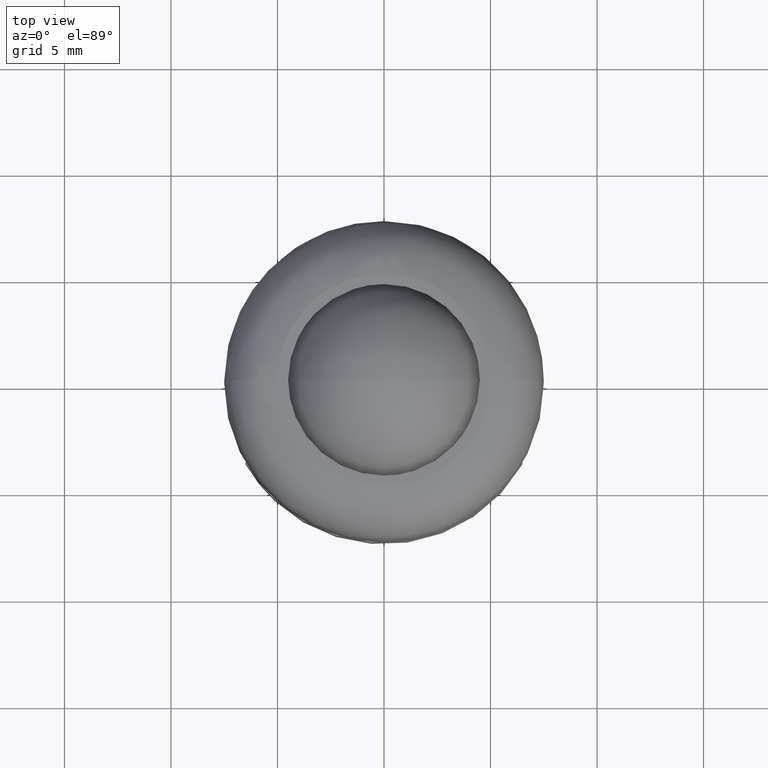
[diagram: clean part render]
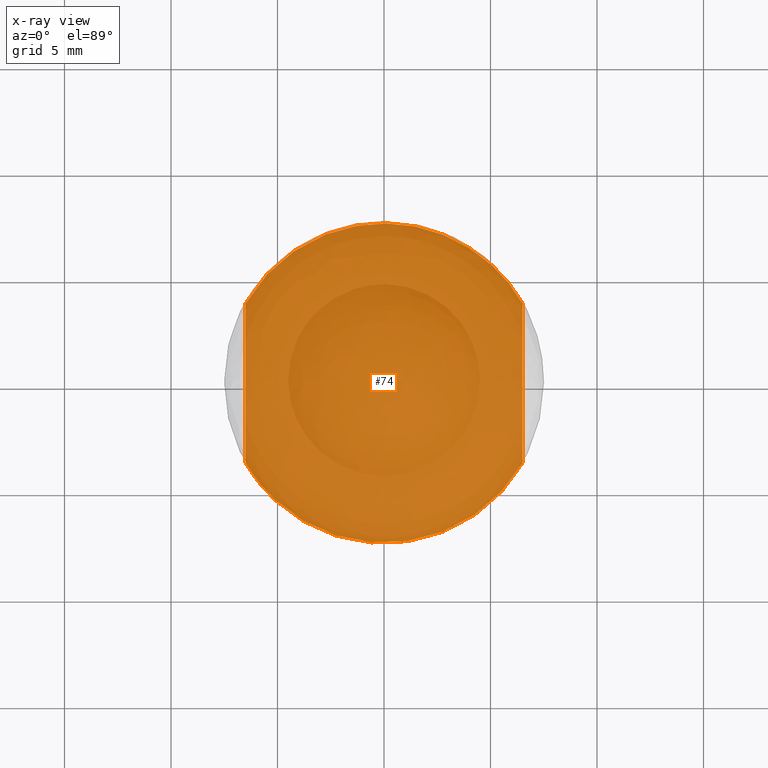
[diagram: x-ray — body ghosted, one internal face saturated and labeled with its STEP entity id]
A machine part, top view, then the same camera in x-ray: the body is ghosted and one INTERNAL B-rep face — a face not visible from any outside direction — is saturated and labeled: STEP entity #74.
In plain terms, the highlighted face is a freeform B-spline surface patch.
Its self-contained STEP definition (entity closure, byte-faithful):
#5=CARTESIAN_POINT('',(-7.149349974803478,-8.249261892420799,0.0));
#6=CARTESIAN_POINT('',(7.149350323490650,-8.249261892420799,0.0));
#7=CARTESIAN_POINT('',(-7.149349974803478,8.249258807880432,0.0));
#8=CARTESIAN_POINT('',(7.149350323490650,8.249258807880432,0.0));
#9=B_SPLINE_SURFACE_WITH_KNOTS('',1,1,((#5,#7),(#6,#8)),.UNSPECIFIED.,.F.,.F.,.U.,(2,2),(2,2),(0.0,14.298700298294129),(0.0,16.498520700301231),.UNSPECIFIED.);
#10=CARTESIAN_POINT('',(-6.500000000000000,3.741657386773940,0.0));
#11=VERTEX_POINT('',#10);
#12=CARTESIAN_POINT('',(6.500000000000000,3.741657386773935,0.0));
#13=VERTEX_POINT('',#12);
#14=CARTESIAN_POINT('',(-6.500000000000000,3.741657386773940,0.0));
#15=CARTESIAN_POINT('',(-6.275283384503942,4.132132352465598,0.0));
#16=CARTESIAN_POINT('',(-5.837891935122653,4.754589229707348,0.0));
#17=CARTESIAN_POINT('',(-5.142417322097016,5.480531446964246,0.0));
#18=CARTESIAN_POINT('',(-4.434531527033030,6.072268080841468,0.0));
#19=CARTESIAN_POINT('',(-3.537556521204224,6.651549272886815,0.0));
#20=CARTESIAN_POINT('',(-2.462482364402666,7.118235966130587,0.0));
#21=CARTESIAN_POINT('',(-1.288931759172917,7.417674165824830,0.0));
#22=CARTESIAN_POINT('',(-0.286997320670188,7.516476993747227,0.0));
#23=CARTESIAN_POINT('',(0.635137103626559,7.486225968714050,0.0));
#24=CARTESIAN_POINT('',(1.386980202211732,7.383990748909625,0.0));
#25=CARTESIAN_POINT('',(2.164139784260522,7.195829297870091,0.0));
#26=CARTESIAN_POINT('',(2.897914655690706,6.932927078662085,0.0));
#27=CARTESIAN_POINT('',(3.765421799577626,6.513351076427613,0.0));
#28=CARTESIAN_POINT('',(4.570458943719809,5.979368728930646,0.0));
#29=CARTESIAN_POINT('',(5.289454452973154,5.337134809008748,0.0));
#30=CARTESIAN_POINT('',(5.922118149813474,4.637681239177550,0.0));
#31=CARTESIAN_POINT('',(6.295698574023362,4.096626232031681,0.0));
#32=CARTESIAN_POINT('',(6.500000000000000,3.741657386773935,0.0));
#33=B_SPLINE_CURVE_WITH_KNOTS('',3,(#14,#15,#16,#17,#18,#19,#20,#21,#22,#23,#24,#25,#26,#27,#28,#29,#30,#31,#32),.UNSPECIFIED.,.F.,.U.,(4,1,1,1,1,1,1,1,1,1,1,1,1,1,1,1,4),(6.136098E-009,1.351552963088817,2.273074689706574,3.010294977806991,4.116121648143688,5.467689773090257,6.512072980356399,7.740766695720189,8.477977447048886,9.276623397755270,10.013837600605260,10.873928008454641,11.611145456106680,12.901278616285310,13.761360571552419,14.498580050755301,15.727266542327721),.UNSPECIFIED.);
#34=EDGE_CURVE('',#11,#13,#33,.T.);
#35=ORIENTED_EDGE('',*,*,#34,.F.);
#36=CARTESIAN_POINT('',(-6.500000000000000,-3.741657386773940,0.0));
#37=VERTEX_POINT('',#36);
#38=CARTESIAN_POINT('',(-6.500000000000000,3.741657386773940,0.0));
#39=CARTESIAN_POINT('',(-6.500000000000000,-3.741657386773940,0.0));
#40=QUASI_UNIFORM_CURVE('',1,(#38,#39),.UNSPECIFIED.,.F.,.U.);
#41=EDGE_CURVE('',#11,#37,#40,.T.);
#42=ORIENTED_EDGE('',*,*,#41,.T.);
#43=CARTESIAN_POINT('',(6.500000000000000,-3.741657386773935,0.0));
#44=VERTEX_POINT('',#43);
#45=CARTESIAN_POINT('',(6.500000000000000,-3.741657386773935,0.0));
#46=CARTESIAN_POINT('',(6.356979005007462,-3.990124358361192,0.0));
#47=CARTESIAN_POINT('',(6.008690590370810,-4.522122297948829,0.0));
#48=CARTESIAN_POINT('',(5.355636536602107,-5.287159385983958,0.0));
#49=CARTESIAN_POINT('',(4.568885502681805,-5.978331983337632,0.0));
#50=CARTESIAN_POINT('',(3.711470615391459,-6.542021942409855,0.0));
#51=CARTESIAN_POINT('',(2.972486298018778,-6.899456602792069,0.0));
#52=CARTESIAN_POINT('',(2.203231813366045,-7.182191234723915,0.0));
#53=CARTESIAN_POINT('',(1.349083041161838,-7.403896290814982,0.0));
#54=CARTESIAN_POINT('',(0.348761422469858,-7.514954813035430,0.0));
#55=CARTESIAN_POINT('',(-0.758545219322770,-7.487749340734884,0.0));
#56=CARTESIAN_POINT('',(-1.832583396155119,-7.305696457917685,0.0));
#57=CARTESIAN_POINT('',(-2.785205349088490,-6.981861398050936,0.0));
#58=CARTESIAN_POINT('',(-3.637265596477894,-6.578312668400921,0.0));
#59=CARTESIAN_POINT('',(-4.386752970138583,-6.111537306767645,0.0));
#60=CARTESIAN_POINT('',(-5.223918037988059,-5.417567077414154,0.0));
#61=CARTESIAN_POINT('',(-5.926836466521680,-4.640408689824656,0.0));
#62=CARTESIAN_POINT('',(-6.336546972948535,-4.025622156634097,0.0));
#63=CARTESIAN_POINT('',(-6.500000000000000,-3.741657386773940,0.0));
#64=B_SPLINE_CURVE_WITH_KNOTS('',3,(#45,#46,#47,#48,#49,#50,#51,#52,#53,#54,#55,#56,#57,#58,#59,#60,#61,#62,#63),.UNSPECIFIED.,.F.,.U.,(4,1,1,1,1,1,1,1,1,1,1,1,1,1,1,1,4),(6.137824E-009,0.860071020634917,1.904470807211594,3.010294977808385,3.993251846574097,4.976209414907745,5.467689773091218,6.450637572631756,7.617899152168640,8.477977447049403,9.768097971690377,10.873928008454749,11.488275550024980,12.594103511893261,13.515624348465231,14.744319942806211,15.727266542327710),.UNSPECIFIED.);
#65=EDGE_CURVE('',#44,#37,#64,.T.);
#66=ORIENTED_EDGE('',*,*,#65,.F.);
#67=CARTESIAN_POINT('',(6.500000000000000,-3.741657386773935,0.0));
#68=CARTESIAN_POINT('',(6.500000000000000,3.741657386773935,0.0));
#69=QUASI_UNIFORM_CURVE('',1,(#67,#68),.UNSPECIFIED.,.F.,.U.);
#70=EDGE_CURVE('',#44,#13,#69,.T.);
#71=ORIENTED_EDGE('',*,*,#70,.T.);
#72=EDGE_LOOP('',(#35,#42,#66,#71));
#73=FACE_OUTER_BOUND('',#72,.T.);
#74=ADVANCED_FACE('',(#73),#9,.T.);